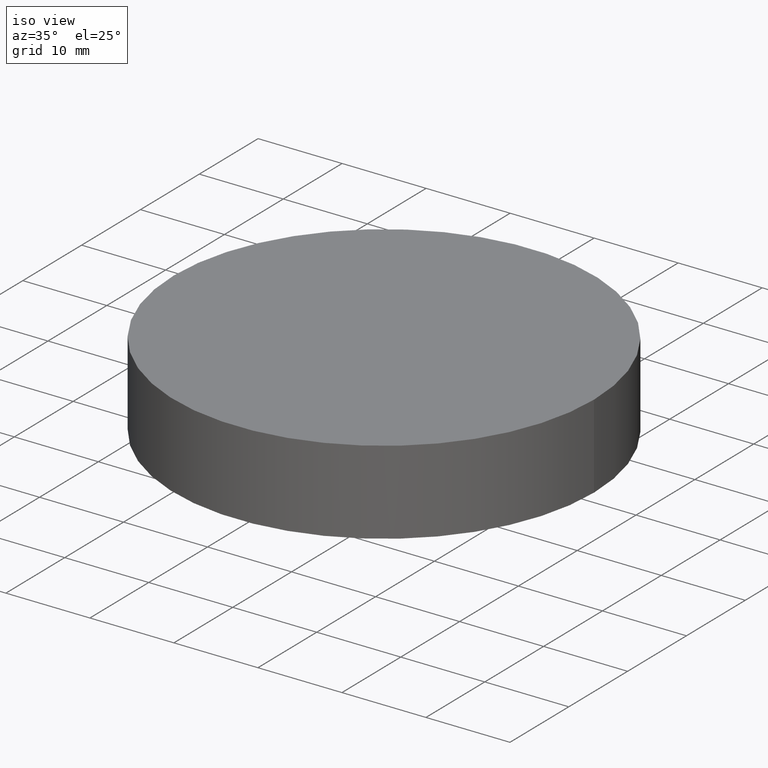
[diagram: clean part render]
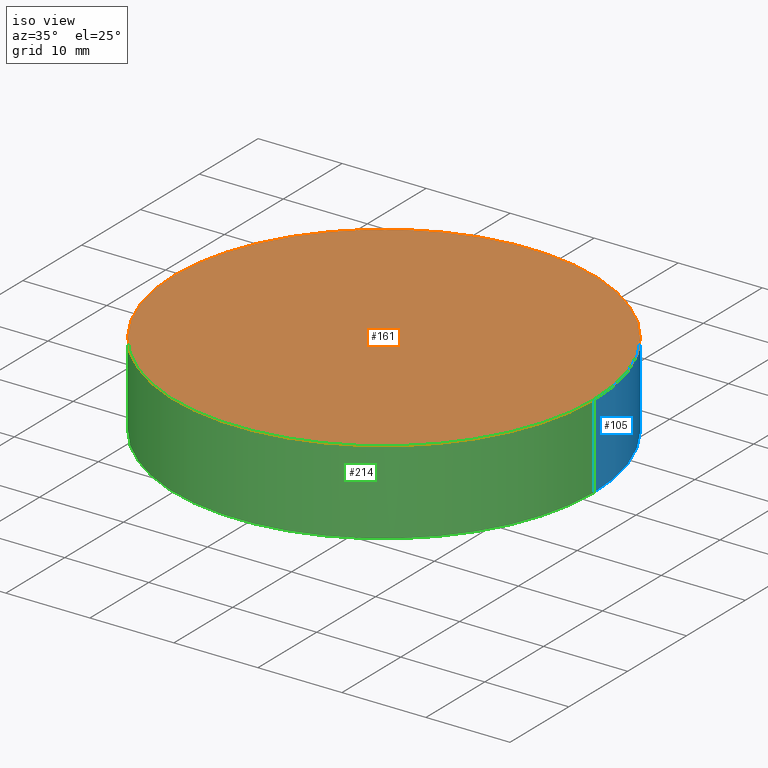
[diagram: same view with three faces highlighted in distinct colors, each labeled with its STEP entity id]
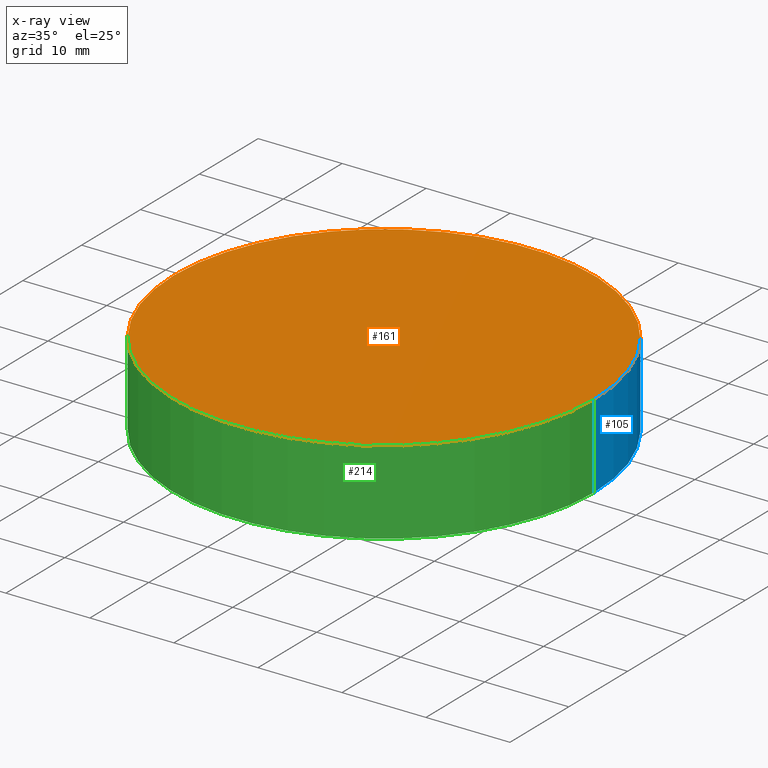
[diagram: x-ray of the same camera — body ghosted, the three highlighted faces saturated]
A machine part, iso view with three faces highlighted in distinct colors.
The next image is the same camera in x-ray (body ghosted, the three faces saturated) — at least one of them is partly hidden behind the body in this view.
Their STEP definitions:

[orange] entity #161 — the highlighted planar face has unit normal (0, 0, 1).
#4 = PLANE ( 'NONE',  #58 ) ;
#20 = FACE_OUTER_BOUND ( 'NONE', #127, .T. ) ;
#30 = DIRECTION ( 'NONE',  ( 1.000000000000000000, 0.0000000000000000000, 0.0000000000000000000 ) ) ;
#34 = DIRECTION ( 'NONE',  ( 0.0000000000000000000, 0.0000000000000000000, 1.000000000000000000 ) ) ;
#48 = CARTESIAN_POINT ( 'NONE',  ( 0.0000000000000000000, 0.0000000000000000000, 10.00000000000000000 ) ) ;
#58 = AXIS2_PLACEMENT_3D ( 'NONE', #169, #34, #119 ) ;
#67 = AXIS2_PLACEMENT_3D ( 'NONE', #48, #70, #204 ) ;
#70 = DIRECTION ( 'NONE',  ( 0.0000000000000000000, 0.0000000000000000000, 1.000000000000000000 ) ) ;
#113 = EDGE_CURVE ( 'NONE', #145, #206, #170, .T. ) ;
#115 = CARTESIAN_POINT ( 'NONE',  ( 0.0000000000000000000, 0.0000000000000000000, 10.00000000000000000 ) ) ;
#116 = ORIENTED_EDGE ( 'NONE', *, *, #235, .T. ) ;
#119 = DIRECTION ( 'NONE',  ( 1.000000000000000000, 0.0000000000000000000, -0.0000000000000000000 ) ) ;
#127 = EDGE_LOOP ( 'NONE', ( #116, #182 ) ) ;
#135 = CARTESIAN_POINT ( 'NONE',  ( 25.00000000000000000, 3.061616997868383000E-015, 10.00000000000000000 ) ) ;
#138 = CARTESIAN_POINT ( 'NONE',  ( -25.00000000000000000, 0.0000000000000000000, 10.00000000000000000 ) ) ;
#145 = VERTEX_POINT ( 'NONE', #135 ) ;
#161 = ADVANCED_FACE ( 'NONE', ( #20 ), #4, .T. ) ;
#169 = CARTESIAN_POINT ( 'NONE',  ( 0.0000000000000000000, 0.0000000000000000000, 10.00000000000000000 ) ) ;
#170 = CIRCLE ( 'NONE', #67, 25.00000000000000000 ) ;
#182 = ORIENTED_EDGE ( 'NONE', *, *, #113, .T. ) ;
#204 = DIRECTION ( 'NONE',  ( 1.000000000000000000, 0.0000000000000000000, 0.0000000000000000000 ) ) ;
#206 = VERTEX_POINT ( 'NONE', #138 ) ;
#225 = AXIS2_PLACEMENT_3D ( 'NONE', #115, #242, #30 ) ;
#227 = CIRCLE ( 'NONE', #225, 25.00000000000000000 ) ;
#235 = EDGE_CURVE ( 'NONE', #206, #145, #227, .T. ) ;
#242 = DIRECTION ( 'NONE',  ( 0.0000000000000000000, 0.0000000000000000000, 1.000000000000000000 ) ) ;

[blue] entity #105 — the highlighted cylindrical surface (partial cylindrical patch) has radius 25 mm, axis along (-0, -0, -1).
#23 = DIRECTION ( 'NONE',  ( -1.000000000000000000, 0.0000000000000000000, 0.0000000000000000000 ) ) ;
#24 = ORIENTED_EDGE ( 'NONE', *, *, #43, .T. ) ;
#39 = ORIENTED_EDGE ( 'NONE', *, *, #47, .T. ) ;
#43 = EDGE_CURVE ( 'NONE', #216, #81, #71, .T. ) ;
#47 = EDGE_CURVE ( 'NONE', #145, #216, #163, .T. ) ;
#48 = CARTESIAN_POINT ( 'NONE',  ( 0.0000000000000000000, 0.0000000000000000000, 10.00000000000000000 ) ) ;
#50 = VECTOR ( 'NONE', #219, 1000.000000000000000 ) ;
#67 = AXIS2_PLACEMENT_3D ( 'NONE', #48, #70, #204 ) ;
#69 = DIRECTION ( 'NONE',  ( 0.0000000000000000000, 0.0000000000000000000, 1.000000000000000000 ) ) ;
#70 = DIRECTION ( 'NONE',  ( 0.0000000000000000000, 0.0000000000000000000, 1.000000000000000000 ) ) ;
#71 = CIRCLE ( 'NONE', #199, 25.00000000000000000 ) ;
#81 = VERTEX_POINT ( 'NONE', #156 ) ;
#85 = CARTESIAN_POINT ( 'NONE',  ( 0.0000000000000000000, 0.0000000000000000000, 10.00000000000000000 ) ) ;
#91 = ORIENTED_EDGE ( 'NONE', *, *, #113, .F. ) ;
#101 = EDGE_LOOP ( 'NONE', ( #91, #39, #24, #230 ) ) ;
#105 = ADVANCED_FACE ( 'NONE', ( #183 ), #108, .T. ) ;
#108 = CYLINDRICAL_SURFACE ( 'NONE', #217, 25.00000000000000000 ) ;
#111 = CARTESIAN_POINT ( 'NONE',  ( 0.0000000000000000000, 0.0000000000000000000, 0.0000000000000000000 ) ) ;
#113 = EDGE_CURVE ( 'NONE', #145, #206, #170, .T. ) ;
#131 = EDGE_CURVE ( 'NONE', #206, #81, #252, .T. ) ;
#135 = CARTESIAN_POINT ( 'NONE',  ( 25.00000000000000000, 3.061616997868383000E-015, 10.00000000000000000 ) ) ;
#137 = DIRECTION ( 'NONE',  ( -0.0000000000000000000, -0.0000000000000000000, -1.000000000000000000 ) ) ;
#138 = CARTESIAN_POINT ( 'NONE',  ( -25.00000000000000000, 0.0000000000000000000, 10.00000000000000000 ) ) ;
#145 = VERTEX_POINT ( 'NONE', #135 ) ;
#156 = CARTESIAN_POINT ( 'NONE',  ( -25.00000000000000000, 0.0000000000000000000, 0.0000000000000000000 ) ) ;
#163 = LINE ( 'NONE', #226, #215 ) ;
#168 = DIRECTION ( 'NONE',  ( -0.0000000000000000000, -0.0000000000000000000, -1.000000000000000000 ) ) ;
#170 = CIRCLE ( 'NONE', #67, 25.00000000000000000 ) ;
#183 = FACE_OUTER_BOUND ( 'NONE', #101, .T. ) ;
#187 = CARTESIAN_POINT ( 'NONE',  ( 25.00000000000000000, 3.061616997868383000E-015, 0.0000000000000000000 ) ) ;
#188 = CARTESIAN_POINT ( 'NONE',  ( -25.00000000000000000, 0.0000000000000000000, 10.00000000000000000 ) ) ;
#199 = AXIS2_PLACEMENT_3D ( 'NONE', #111, #69, #208 ) ;
#204 = DIRECTION ( 'NONE',  ( 1.000000000000000000, 0.0000000000000000000, 0.0000000000000000000 ) ) ;
#206 = VERTEX_POINT ( 'NONE', #138 ) ;
#208 = DIRECTION ( 'NONE',  ( 1.000000000000000000, 0.0000000000000000000, 0.0000000000000000000 ) ) ;
#215 = VECTOR ( 'NONE', #168, 1000.000000000000000 ) ;
#216 = VERTEX_POINT ( 'NONE', #187 ) ;
#217 = AXIS2_PLACEMENT_3D ( 'NONE', #85, #137, #23 ) ;
#219 = DIRECTION ( 'NONE',  ( -0.0000000000000000000, -0.0000000000000000000, -1.000000000000000000 ) ) ;
#226 = CARTESIAN_POINT ( 'NONE',  ( 25.00000000000000000, 3.061616997868383000E-015, 10.00000000000000000 ) ) ;
#230 = ORIENTED_EDGE ( 'NONE', *, *, #131, .F. ) ;
#252 = LINE ( 'NONE', #188, #50 ) ;

[green] entity #214 — the highlighted cylindrical surface (partial cylindrical patch) has radius 25 mm, axis along (-0, -0, -1).
#11 = EDGE_CURVE ( 'NONE', #81, #216, #66, .T. ) ;
#27 = FACE_OUTER_BOUND ( 'NONE', #88, .T. ) ;
#28 = CARTESIAN_POINT ( 'NONE',  ( 0.0000000000000000000, 0.0000000000000000000, 0.0000000000000000000 ) ) ;
#30 = DIRECTION ( 'NONE',  ( 1.000000000000000000, 0.0000000000000000000, 0.0000000000000000000 ) ) ;
#47 = EDGE_CURVE ( 'NONE', #145, #216, #163, .T. ) ;
#49 = CARTESIAN_POINT ( 'NONE',  ( 0.0000000000000000000, 0.0000000000000000000, 10.00000000000000000 ) ) ;
#50 = VECTOR ( 'NONE', #219, 1000.000000000000000 ) ;
#53 = AXIS2_PLACEMENT_3D ( 'NONE', #28, #172, #114 ) ;
#59 = ORIENTED_EDGE ( 'NONE', *, *, #131, .T. ) ;
#66 = CIRCLE ( 'NONE', #53, 25.00000000000000000 ) ;
#68 = CYLINDRICAL_SURFACE ( 'NONE', #124, 25.00000000000000000 ) ;
#81 = VERTEX_POINT ( 'NONE', #156 ) ;
#88 = EDGE_LOOP ( 'NONE', ( #186, #221, #59, #236 ) ) ;
#90 = DIRECTION ( 'NONE',  ( -1.000000000000000000, 0.0000000000000000000, 0.0000000000000000000 ) ) ;
#114 = DIRECTION ( 'NONE',  ( 1.000000000000000000, 0.0000000000000000000, 0.0000000000000000000 ) ) ;
#115 = CARTESIAN_POINT ( 'NONE',  ( 0.0000000000000000000, 0.0000000000000000000, 10.00000000000000000 ) ) ;
#124 = AXIS2_PLACEMENT_3D ( 'NONE', #49, #224, #90 ) ;
#131 = EDGE_CURVE ( 'NONE', #206, #81, #252, .T. ) ;
#135 = CARTESIAN_POINT ( 'NONE',  ( 25.00000000000000000, 3.061616997868383000E-015, 10.00000000000000000 ) ) ;
#138 = CARTESIAN_POINT ( 'NONE',  ( -25.00000000000000000, 0.0000000000000000000, 10.00000000000000000 ) ) ;
#145 = VERTEX_POINT ( 'NONE', #135 ) ;
#156 = CARTESIAN_POINT ( 'NONE',  ( -25.00000000000000000, 0.0000000000000000000, 0.0000000000000000000 ) ) ;
#163 = LINE ( 'NONE', #226, #215 ) ;
#168 = DIRECTION ( 'NONE',  ( -0.0000000000000000000, -0.0000000000000000000, -1.000000000000000000 ) ) ;
#172 = DIRECTION ( 'NONE',  ( 0.0000000000000000000, 0.0000000000000000000, 1.000000000000000000 ) ) ;
#186 = ORIENTED_EDGE ( 'NONE', *, *, #47, .F. ) ;
#187 = CARTESIAN_POINT ( 'NONE',  ( 25.00000000000000000, 3.061616997868383000E-015, 0.0000000000000000000 ) ) ;
#188 = CARTESIAN_POINT ( 'NONE',  ( -25.00000000000000000, 0.0000000000000000000, 10.00000000000000000 ) ) ;
#206 = VERTEX_POINT ( 'NONE', #138 ) ;
#214 = ADVANCED_FACE ( 'NONE', ( #27 ), #68, .T. ) ;
#215 = VECTOR ( 'NONE', #168, 1000.000000000000000 ) ;
#216 = VERTEX_POINT ( 'NONE', #187 ) ;
#219 = DIRECTION ( 'NONE',  ( -0.0000000000000000000, -0.0000000000000000000, -1.000000000000000000 ) ) ;
#221 = ORIENTED_EDGE ( 'NONE', *, *, #235, .F. ) ;
#224 = DIRECTION ( 'NONE',  ( -0.0000000000000000000, -0.0000000000000000000, -1.000000000000000000 ) ) ;
#225 = AXIS2_PLACEMENT_3D ( 'NONE', #115, #242, #30 ) ;
#226 = CARTESIAN_POINT ( 'NONE',  ( 25.00000000000000000, 3.061616997868383000E-015, 10.00000000000000000 ) ) ;
#227 = CIRCLE ( 'NONE', #225, 25.00000000000000000 ) ;
#235 = EDGE_CURVE ( 'NONE', #206, #145, #227, .T. ) ;
#236 = ORIENTED_EDGE ( 'NONE', *, *, #11, .T. ) ;
#242 = DIRECTION ( 'NONE',  ( 0.0000000000000000000, 0.0000000000000000000, 1.000000000000000000 ) ) ;
#252 = LINE ( 'NONE', #188, #50 ) ;